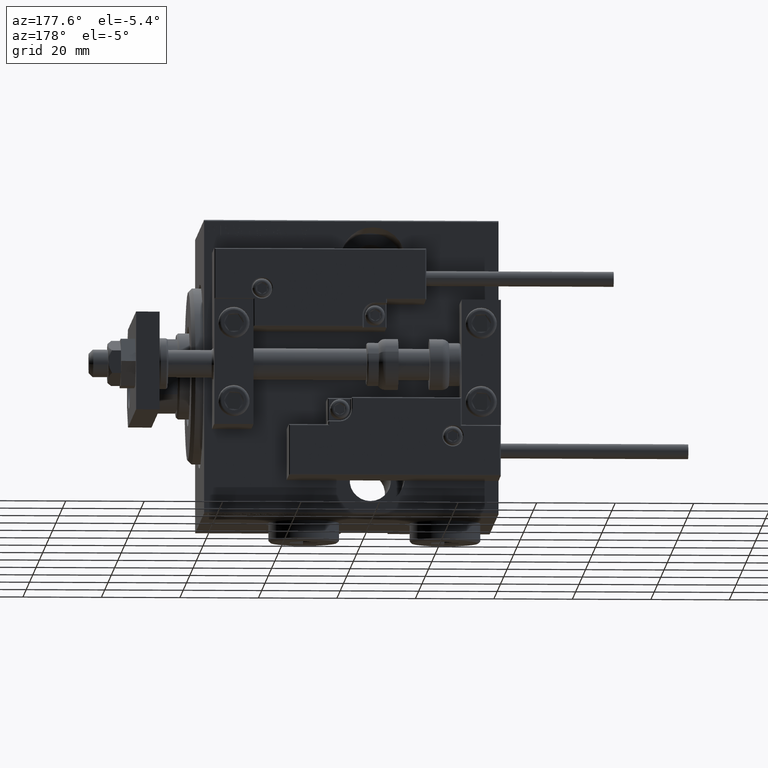
[diagram: clean part render]
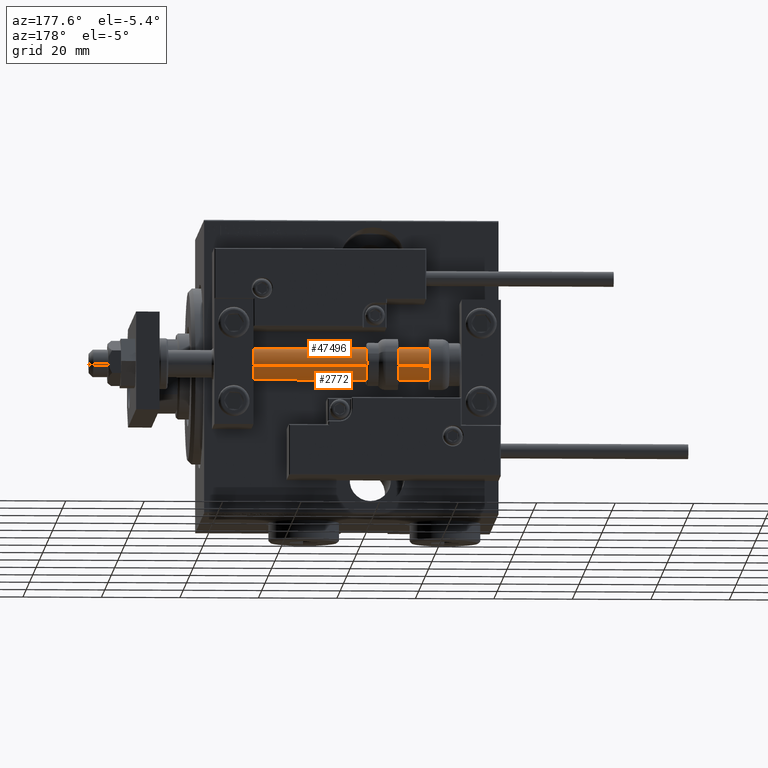
[diagram: same view with one multi-face feature highlighted, each face labeled with its STEP entity id]
A machine part, auxiliary view. The highlighted faces form ONE feature: a constant-radius fillet chain: 2 tangent blend faces with common blend radius 4 mm. The faces share edges in the B-rep.
Their STEP definitions:
[1] entity #2772 (Cylinder):
#1975 = DIRECTION ( 'NONE',  ( -0.000000000000000000, -0.000000000000000000, 1.000000000000000000 ) ) ;
#2772 = ADVANCED_FACE ( 'NONE', ( #38293 ), #6865, .T. ) ;
#4069 = VECTOR ( 'NONE', #6179, 1000.000000000000000 ) ;
#6179 = DIRECTION ( 'NONE',  ( -0.000000000000000000, -0.000000000000000000, -1.000000000000000000 ) ) ;
#6503 = LINE ( 'NONE', #33296, #49333 ) ;
#6865 = CYLINDRICAL_SURFACE ( 'NONE', #15465, 4.000000000000000000 ) ;
#10368 = ORIENTED_EDGE ( 'NONE', *, *, #35022, .T. ) ;
#11549 = ORIENTED_EDGE ( 'NONE', *, *, #14119, .F. ) ;
#11743 = VERTEX_POINT ( 'NONE', #29629 ) ;
#13412 = CARTESIAN_POINT ( 'NONE',  ( 4.000000000000000000, 4.898587196589412829E-16, 75.00000000000000000 ) ) ;
#14049 = AXIS2_PLACEMENT_3D ( 'NONE', #28854, #44582, #16769 ) ;
#14119 = EDGE_CURVE ( 'NONE', #22420, #34533, #6503, .T. ) ;
#15465 = AXIS2_PLACEMENT_3D ( 'NONE', #26952, #46288, #34164 ) ;
#16734 = EDGE_LOOP ( 'NONE', ( #20036, #10368, #48595, #11549 ) ) ;
#16769 = DIRECTION ( 'NONE',  ( 1.000000000000000000, 0.000000000000000000, 0.000000000000000000 ) ) ;
#17398 = AXIS2_PLACEMENT_3D ( 'NONE', #26193, #1975, #45249 ) ;
#20036 = ORIENTED_EDGE ( 'NONE', *, *, #37883, .F. ) ;
#22420 = VERTEX_POINT ( 'NONE', #45733 ) ;
#26193 = CARTESIAN_POINT ( 'NONE',  ( 0.000000000000000000, 0.000000000000000000, 2.000000000000029310 ) ) ;
#26419 = CIRCLE ( 'NONE', #14049, 4.000000000000000000 ) ;
#26952 = CARTESIAN_POINT ( 'NONE',  ( 0.000000000000000000, 0.000000000000000000, 75.00000000000000000 ) ) ;
#28854 = CARTESIAN_POINT ( 'NONE',  ( 0.000000000000000000, 0.000000000000000000, 75.00000000000000000 ) ) ;
#29629 = CARTESIAN_POINT ( 'NONE',  ( 4.000000000000000000, 4.898587196589412829E-16, 75.00000000000000000 ) ) ;
#29936 = DIRECTION ( 'NONE',  ( -0.000000000000000000, -0.000000000000000000, -1.000000000000000000 ) ) ;
#32051 = VERTEX_POINT ( 'NONE', #34788 ) ;
#33296 = CARTESIAN_POINT ( 'NONE',  ( -4.000000000000000000, 0.000000000000000000, 75.00000000000000000 ) ) ;
#34164 = DIRECTION ( 'NONE',  ( -1.000000000000000000, 0.000000000000000000, 0.000000000000000000 ) ) ;
#34533 = VERTEX_POINT ( 'NONE', #40727 ) ;
#34788 = CARTESIAN_POINT ( 'NONE',  ( 4.000000000000000000, 4.898587196589412829E-16, 2.000000000000029310 ) ) ;
#35022 = EDGE_CURVE ( 'NONE', #11743, #32051, #45859, .T. ) ;
#37883 = EDGE_CURVE ( 'NONE', #11743, #22420, #26419, .T. ) ;
#38293 = FACE_OUTER_BOUND ( 'NONE', #16734, .T. ) ;
#39610 = CIRCLE ( 'NONE', #17398, 4.000000000000000000 ) ;
#40727 = CARTESIAN_POINT ( 'NONE',  ( -4.000000000000000000, 0.000000000000000000, 2.000000000000029310 ) ) ;
#43265 = EDGE_CURVE ( 'NONE', #32051, #34533, #39610, .T. ) ;
#44582 = DIRECTION ( 'NONE',  ( 0.000000000000000000, 0.000000000000000000, 1.000000000000000000 ) ) ;
#45249 = DIRECTION ( 'NONE',  ( 1.000000000000000000, 0.000000000000000000, 0.000000000000000000 ) ) ;
#45733 = CARTESIAN_POINT ( 'NONE',  ( -4.000000000000000000, 0.000000000000000000, 75.00000000000000000 ) ) ;
#45859 = LINE ( 'NONE', #13412, #4069 ) ;
#46288 = DIRECTION ( 'NONE',  ( -0.000000000000000000, -0.000000000000000000, -1.000000000000000000 ) ) ;
#48595 = ORIENTED_EDGE ( 'NONE', *, *, #43265, .T. ) ;
#49333 = VECTOR ( 'NONE', #29936, 1000.000000000000000 ) ;
[2] entity #47496 (Cylinder):
#4069 = VECTOR ( 'NONE', #6179, 1000.000000000000000 ) ;
#6179 = DIRECTION ( 'NONE',  ( -0.000000000000000000, -0.000000000000000000, -1.000000000000000000 ) ) ;
#6503 = LINE ( 'NONE', #33296, #49333 ) ;
#10972 = CARTESIAN_POINT ( 'NONE',  ( 0.000000000000000000, 0.000000000000000000, 75.00000000000000000 ) ) ;
#11743 = VERTEX_POINT ( 'NONE', #29629 ) ;
#12010 = DIRECTION ( 'NONE',  ( -0.000000000000000000, -0.000000000000000000, 1.000000000000000000 ) ) ;
#12166 = ORIENTED_EDGE ( 'NONE', *, *, #23907, .F. ) ;
#13412 = CARTESIAN_POINT ( 'NONE',  ( 4.000000000000000000, 4.898587196589412829E-16, 75.00000000000000000 ) ) ;
#14119 = EDGE_CURVE ( 'NONE', #22420, #34533, #6503, .T. ) ;
#15019 = ORIENTED_EDGE ( 'NONE', *, *, #18175, .T. ) ;
#15143 = EDGE_LOOP ( 'NONE', ( #43786, #12166, #44897, #15019 ) ) ;
#15367 = CARTESIAN_POINT ( 'NONE',  ( 0.000000000000000000, 0.000000000000000000, 2.000000000000029310 ) ) ;
#18175 = EDGE_CURVE ( 'NONE', #34533, #32051, #42279, .T. ) ;
#22420 = VERTEX_POINT ( 'NONE', #45733 ) ;
#23100 = DIRECTION ( 'NONE',  ( 1.000000000000000000, 0.000000000000000000, 0.000000000000000000 ) ) ;
#23852 = DIRECTION ( 'NONE',  ( 0.000000000000000000, 0.000000000000000000, 1.000000000000000000 ) ) ;
#23907 = EDGE_CURVE ( 'NONE', #22420, #11743, #32616, .T. ) ;
#24196 = AXIS2_PLACEMENT_3D ( 'NONE', #15367, #12010, #23100 ) ;
#27432 = CYLINDRICAL_SURFACE ( 'NONE', #49545, 4.000000000000000000 ) ;
#29629 = CARTESIAN_POINT ( 'NONE',  ( 4.000000000000000000, 4.898587196589412829E-16, 75.00000000000000000 ) ) ;
#29936 = DIRECTION ( 'NONE',  ( -0.000000000000000000, -0.000000000000000000, -1.000000000000000000 ) ) ;
#32051 = VERTEX_POINT ( 'NONE', #34788 ) ;
#32616 = CIRCLE ( 'NONE', #46635, 4.000000000000000000 ) ;
#33296 = CARTESIAN_POINT ( 'NONE',  ( -4.000000000000000000, 0.000000000000000000, 75.00000000000000000 ) ) ;
#34533 = VERTEX_POINT ( 'NONE', #40727 ) ;
#34788 = CARTESIAN_POINT ( 'NONE',  ( 4.000000000000000000, 4.898587196589412829E-16, 2.000000000000029310 ) ) ;
#35022 = EDGE_CURVE ( 'NONE', #11743, #32051, #45859, .T. ) ;
#36204 = DIRECTION ( 'NONE',  ( 1.000000000000000000, 0.000000000000000000, 0.000000000000000000 ) ) ;
#39021 = DIRECTION ( 'NONE',  ( -1.000000000000000000, 0.000000000000000000, 0.000000000000000000 ) ) ;
#40727 = CARTESIAN_POINT ( 'NONE',  ( -4.000000000000000000, 0.000000000000000000, 2.000000000000029310 ) ) ;
#42279 = CIRCLE ( 'NONE', #24196, 4.000000000000000000 ) ;
#42385 = DIRECTION ( 'NONE',  ( -0.000000000000000000, -0.000000000000000000, -1.000000000000000000 ) ) ;
#43786 = ORIENTED_EDGE ( 'NONE', *, *, #35022, .F. ) ;
#44897 = ORIENTED_EDGE ( 'NONE', *, *, #14119, .T. ) ;
#45733 = CARTESIAN_POINT ( 'NONE',  ( -4.000000000000000000, 0.000000000000000000, 75.00000000000000000 ) ) ;
#45859 = LINE ( 'NONE', #13412, #4069 ) ;
#46512 = FACE_OUTER_BOUND ( 'NONE', #15143, .T. ) ;
#46635 = AXIS2_PLACEMENT_3D ( 'NONE', #47794, #23852, #36204 ) ;
#47496 = ADVANCED_FACE ( 'NONE', ( #46512 ), #27432, .T. ) ;
#47794 = CARTESIAN_POINT ( 'NONE',  ( 0.000000000000000000, 0.000000000000000000, 75.00000000000000000 ) ) ;
#49333 = VECTOR ( 'NONE', #29936, 1000.000000000000000 ) ;
#49545 = AXIS2_PLACEMENT_3D ( 'NONE', #10972, #42385, #39021 ) ;